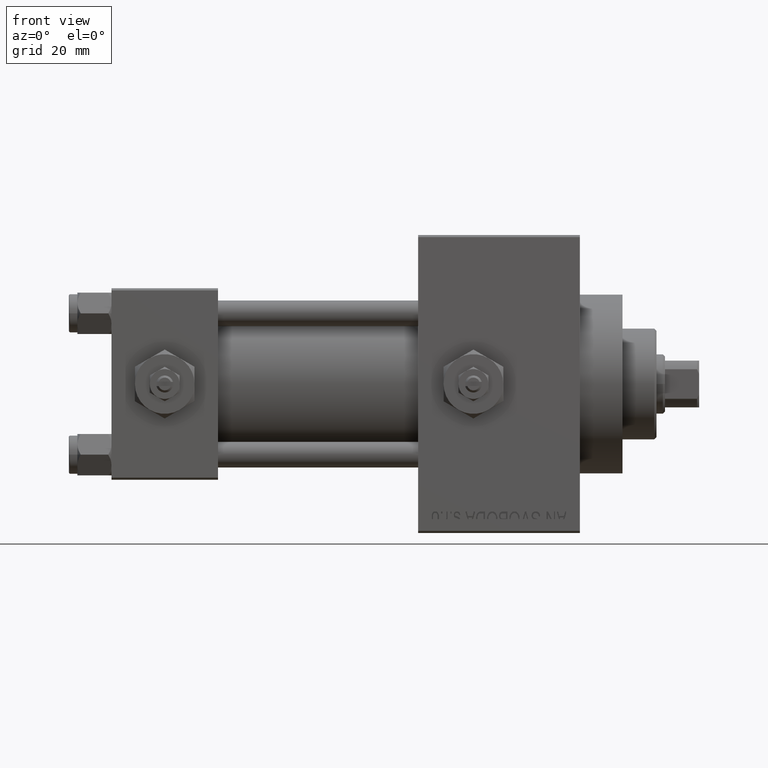
[diagram: clean part render]
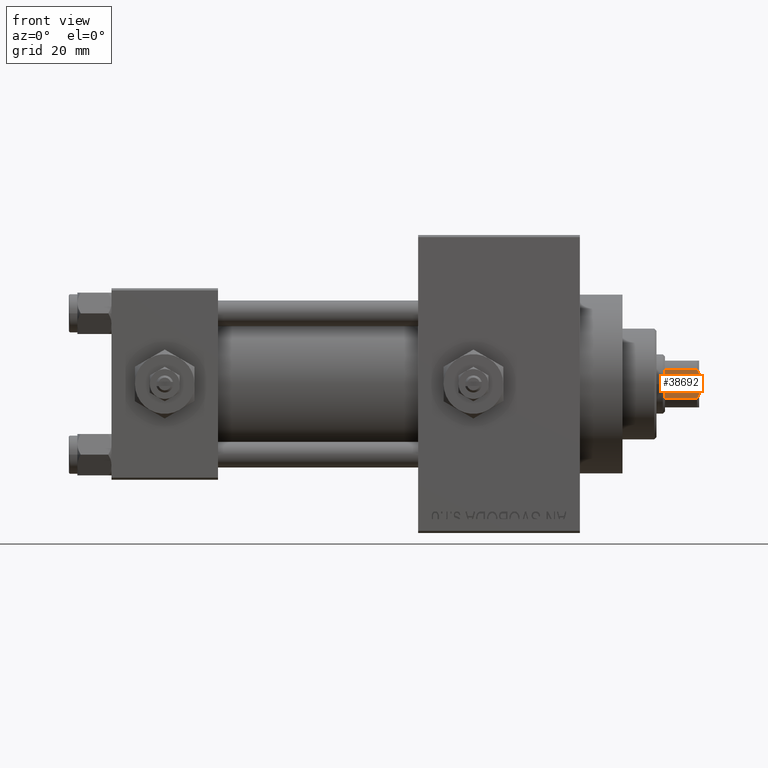
[diagram: same view with one face highlighted and labeled with its STEP entity id]
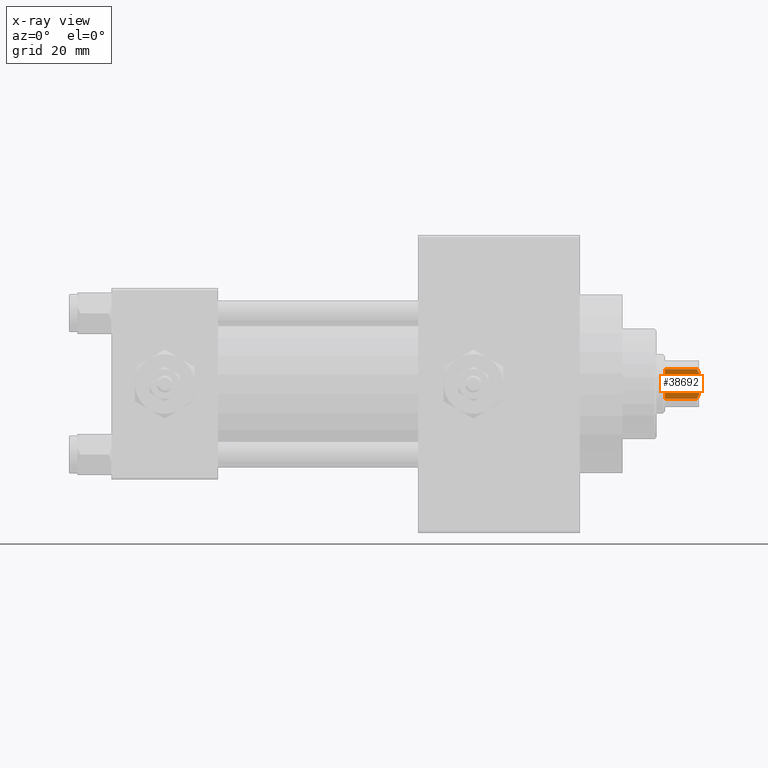
[diagram: x-ray of the same camera — body ghosted, the highlighted face saturated]
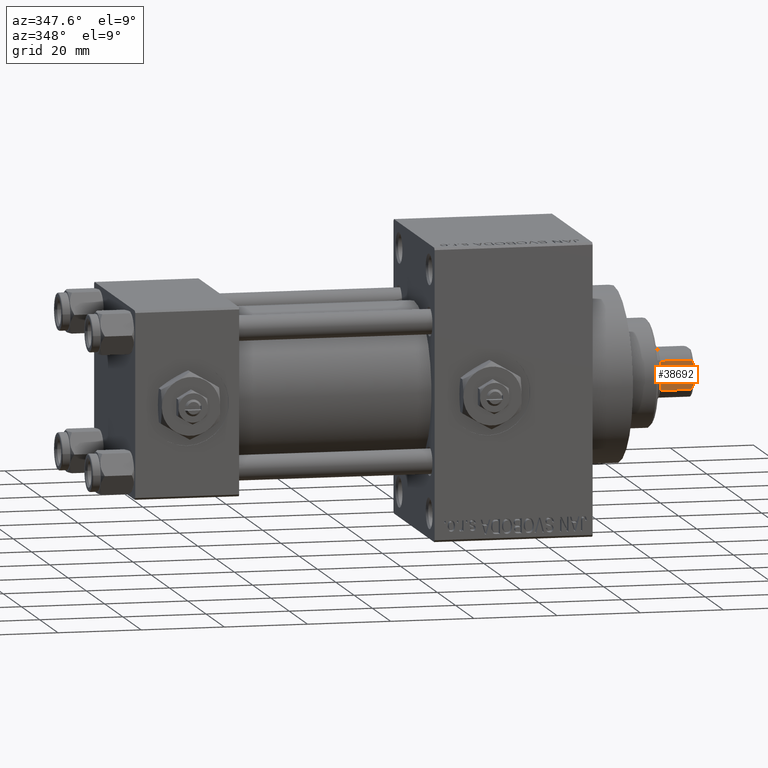
[diagram: same view with one face highlighted and labeled with its STEP entity id]
A machine part, front view. The second image highlights one B-rep face of the part: STEP entity #38692.
The next image is the same camera in x-ray: the body ghosted, the highlighted face saturated — about 0% of this face is hidden behind the body in this view.
A second angle (auxiliary view) of the same face is appended — the face is thin or edge-on in the first view.
In plain terms, the highlighted planar face has unit normal (0, 1, 0).
Its self-contained STEP definition (entity closure, byte-faithful):
#278 = CARTESIAN_POINT ( 'NONE',  ( 5.499999999999999112, 3.464101615137755719, -0.001000000000001000089 ) ) ;
#747 = CARTESIAN_POINT ( 'NONE',  ( 5.500000000000000000, 2.763039233705770314, 112.8540774452369817 ) ) ;
#4166 = CARTESIAN_POINT ( 'NONE',  ( 5.499999999999999112, 5.500000000000000888, 105.0000000000000000 ) ) ;
#4572 = VECTOR ( 'NONE', #38565, 1000.000000000000000 ) ;
#6162 = EDGE_CURVE ( 'NONE', #21018, #11609, #41724, .T. ) ;
#8248 = CARTESIAN_POINT ( 'NONE',  ( 5.499999999999999112, 5.500000000000000888, 112.9999999999999858 ) ) ;
#8357 = EDGE_LOOP ( 'NONE', ( #47501, #34126, #38747, #30094, #14963, #10973 ) ) ;
#8495 = FACE_OUTER_BOUND ( 'NONE', #8357, .T. ) ;
#8701 = CARTESIAN_POINT ( 'NONE',  ( 5.500000000000000000, -2.763039233705772535, 112.8540774452369817 ) ) ;
#10973 = ORIENTED_EDGE ( 'NONE', *, *, #37314, .T. ) ;
#11609 = VERTEX_POINT ( 'NONE', #12176 ) ;
#11758 = LINE ( 'NONE', #15480, #4572 ) ;
#12176 = CARTESIAN_POINT ( 'NONE',  ( 5.499999999999999112, 3.464101615137755719, 112.4999999999999716 ) ) ;
#13980 = B_SPLINE_CURVE_WITH_KNOTS ( 'NONE', 3,
 ( #38945, #19589, #747, #34979 ),
 .UNSPECIFIED., .F., .F.,
 ( 4, 4 ),
 ( 0.000000000000000000, 0.001177604464225550859 ),
 .UNSPECIFIED. ) ;
#14087 = DIRECTION ( 'NONE',  ( -0.000000000000000000, -0.000000000000000000, 1.000000000000000000 ) ) ;
#14302 = CARTESIAN_POINT ( 'NONE',  ( 5.500000000000000000, -2.397915761656329803, 112.9999999999999858 ) ) ;
#14868 = VERTEX_POINT ( 'NONE', #14302 ) ;
#14963 = ORIENTED_EDGE ( 'NONE', *, *, #36248, .F. ) ;
#15480 = CARTESIAN_POINT ( 'NONE',  ( 5.499999999999999112, 5.500000000000000888, 112.9999999999999858 ) ) ;
#15574 = VERTEX_POINT ( 'NONE', #19811 ) ;
#16171 = DIRECTION ( 'NONE',  ( -1.000000000000000000, -1.577021341797097560E-16, 0.000000000000000000 ) ) ;
#19329 = AXIS2_PLACEMENT_3D ( 'NONE', #8248, #16171, #19654 ) ;
#19589 = CARTESIAN_POINT ( 'NONE',  ( 5.499999999999999112, 3.117237133530613047, 112.6848575093798530 ) ) ;
#19654 = DIRECTION ( 'NONE',  ( 1.577021341797097560E-16, -1.000000000000000000, 0.000000000000000000 ) ) ;
#19811 = CARTESIAN_POINT ( 'NONE',  ( 5.499999999999999112, -3.464101615137757939, 104.9999999999999858 ) ) ;
#21018 = VERTEX_POINT ( 'NONE', #40797 ) ;
#22197 = VERTEX_POINT ( 'NONE', #33297 ) ;
#22285 = B_SPLINE_CURVE_WITH_KNOTS ( 'NONE', 3,
 ( #24311, #8701, #43676, #31755 ),
 .UNSPECIFIED., .F., .F.,
 ( 4, 4 ),
 ( 4.336808689942017736E-19, 0.001177604464225538716 ),
 .UNSPECIFIED. ) ;
#22545 = DIRECTION ( 'NONE',  ( -1.577021341797097560E-16, 1.000000000000000000, -0.000000000000000000 ) ) ;
#22856 = DIRECTION ( 'NONE',  ( -0.000000000000000000, -0.000000000000000000, 1.000000000000000000 ) ) ;
#24311 = CARTESIAN_POINT ( 'NONE',  ( 5.500000000000000000, -2.397915761656329803, 112.9999999999999858 ) ) ;
#26843 = PLANE ( 'NONE',  #19329 ) ;
#29285 = EDGE_CURVE ( 'NONE', #14868, #37174, #11758, .T. ) ;
#29357 = VECTOR ( 'NONE', #22856, 1000.000000000000000 ) ;
#30094 = ORIENTED_EDGE ( 'NONE', *, *, #47348, .T. ) ;
#31755 = CARTESIAN_POINT ( 'NONE',  ( 5.499999999999998224, -3.464101615137757051, 112.4999999999999858 ) ) ;
#33297 = CARTESIAN_POINT ( 'NONE',  ( 5.499999999999998224, -3.464101615137757051, 112.4999999999999858 ) ) ;
#34126 = ORIENTED_EDGE ( 'NONE', *, *, #39061, .T. ) ;
#34979 = CARTESIAN_POINT ( 'NONE',  ( 5.500000000000000000, 2.397915761656321809, 112.9999999999999858 ) ) ;
#36248 = EDGE_CURVE ( 'NONE', #15574, #22197, #48607, .T. ) ;
#37174 = VERTEX_POINT ( 'NONE', #46949 ) ;
#37314 = EDGE_CURVE ( 'NONE', #15574, #21018, #37928, .T. ) ;
#37928 = LINE ( 'NONE', #4166, #48651 ) ;
#38565 = DIRECTION ( 'NONE',  ( -1.577021341797097560E-16, 1.000000000000000000, -0.000000000000000000 ) ) ;
#38692 = ADVANCED_FACE ( 'NONE', ( #8495 ), #26843, .F. ) ;
#38747 = ORIENTED_EDGE ( 'NONE', *, *, #29285, .F. ) ;
#38945 = CARTESIAN_POINT ( 'NONE',  ( 5.499999999999999112, 3.464101615137755719, 112.4999999999999716 ) ) ;
#39061 = EDGE_CURVE ( 'NONE', #11609, #37174, #13980, .T. ) ;
#40797 = CARTESIAN_POINT ( 'NONE',  ( 5.499999999999999112, 3.464101615137755719, 104.9999999999999858 ) ) ;
#41724 = LINE ( 'NONE', #278, #29357 ) ;
#43676 = CARTESIAN_POINT ( 'NONE',  ( 5.500000000000000888, -3.117237133530616155, 112.6848575093798672 ) ) ;
#46949 = CARTESIAN_POINT ( 'NONE',  ( 5.500000000000000000, 2.397915761656321809, 112.9999999999999858 ) ) ;
#47348 = EDGE_CURVE ( 'NONE', #14868, #22197, #22285, .T. ) ;
#47501 = ORIENTED_EDGE ( 'NONE', *, *, #6162, .T. ) ;
#48111 = CARTESIAN_POINT ( 'NONE',  ( 5.499999999999998224, -3.464101615137757051, -0.001000000000001000089 ) ) ;
#48607 = LINE ( 'NONE', #48111, #48739 ) ;
#48651 = VECTOR ( 'NONE', #22545, 1000.000000000000000 ) ;
#48739 = VECTOR ( 'NONE', #14087, 1000.000000000000000 ) ;